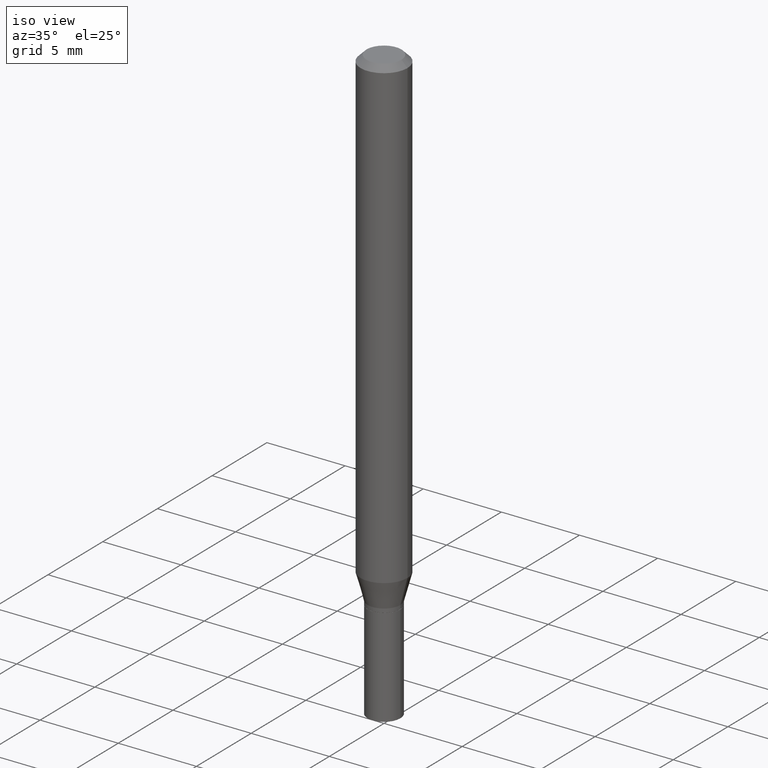
[diagram: clean part render]
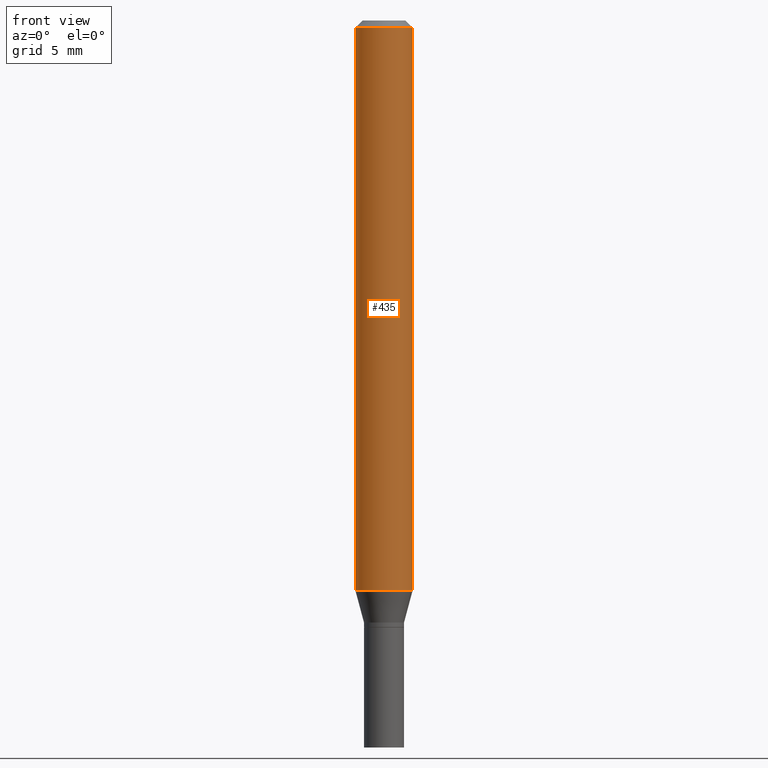
[diagram: tour spotlight — one face highlighted and labeled with its STEP entity id]
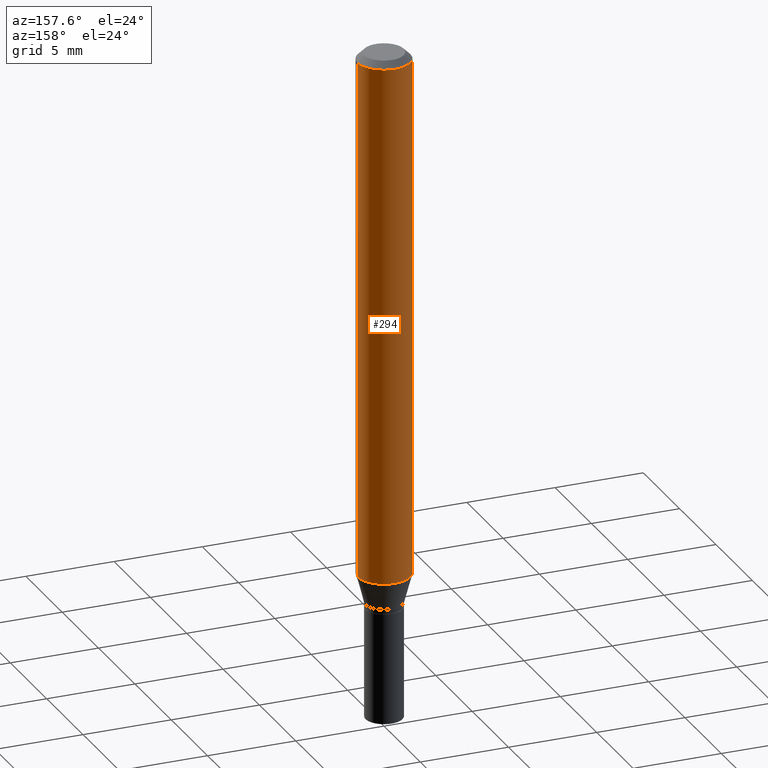
[diagram: tour spotlight — one face highlighted and labeled with its STEP entity id]
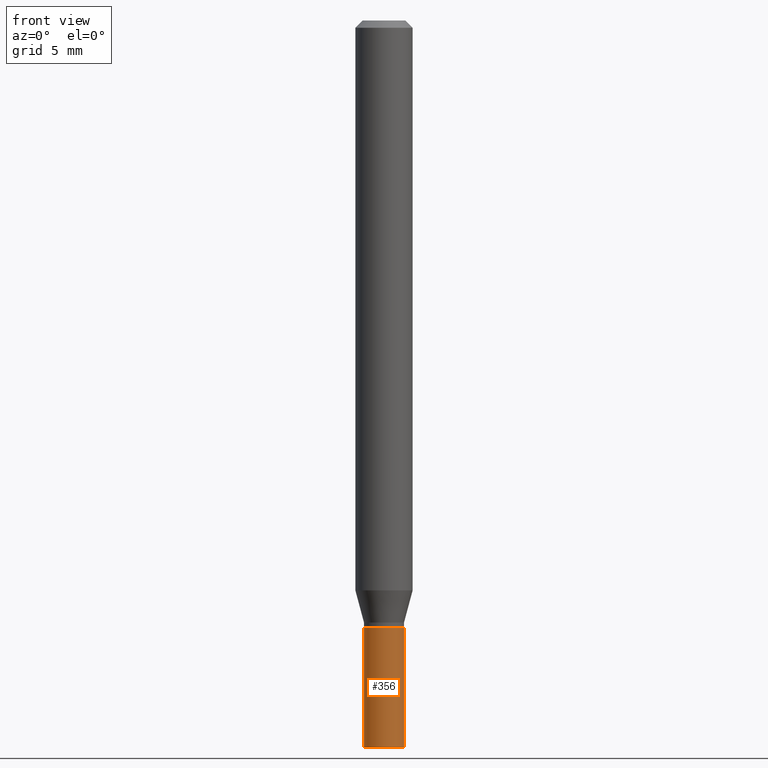
[diagram: tour spotlight — one face highlighted and labeled with its STEP entity id]
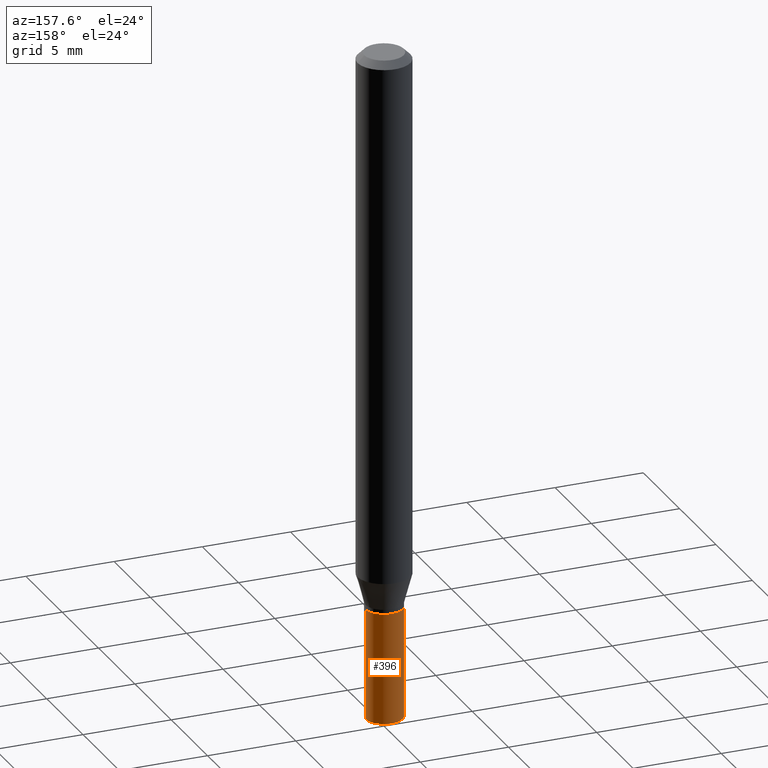
[diagram: tour spotlight — one face highlighted and labeled with its STEP entity id]
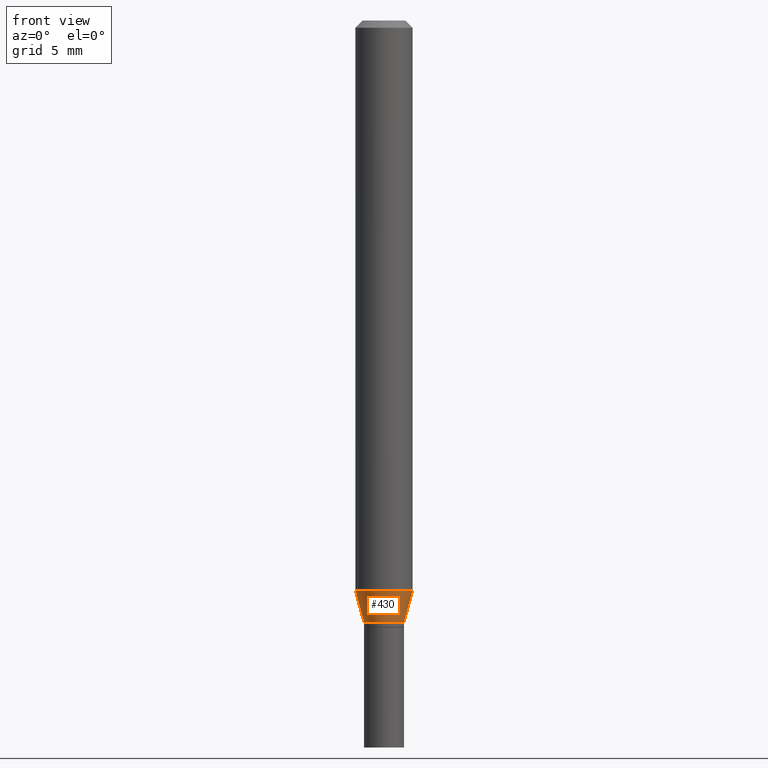
[diagram: tour spotlight — one face highlighted and labeled with its STEP entity id]
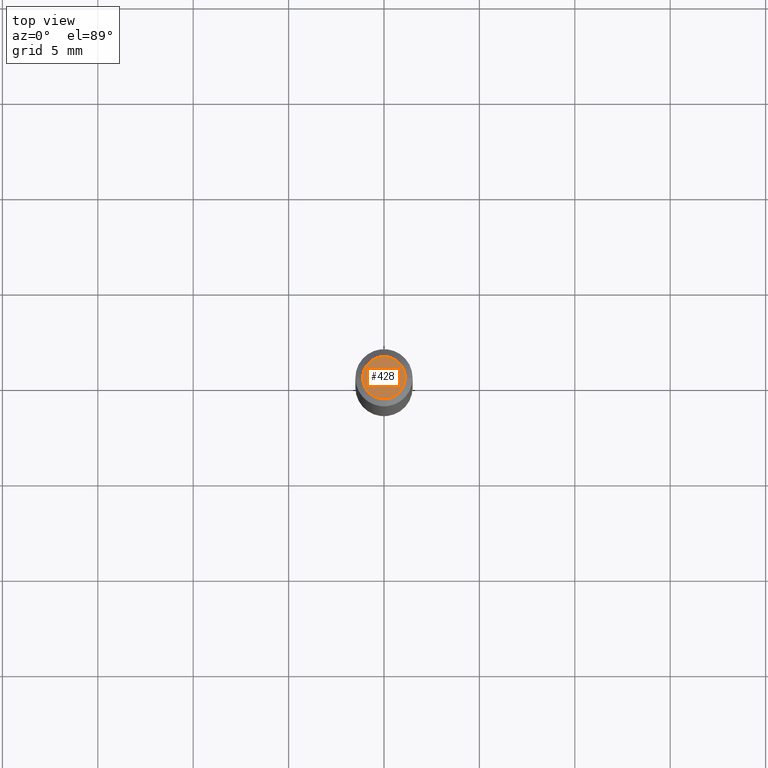
[diagram: tour spotlight — one face highlighted and labeled with its STEP entity id]
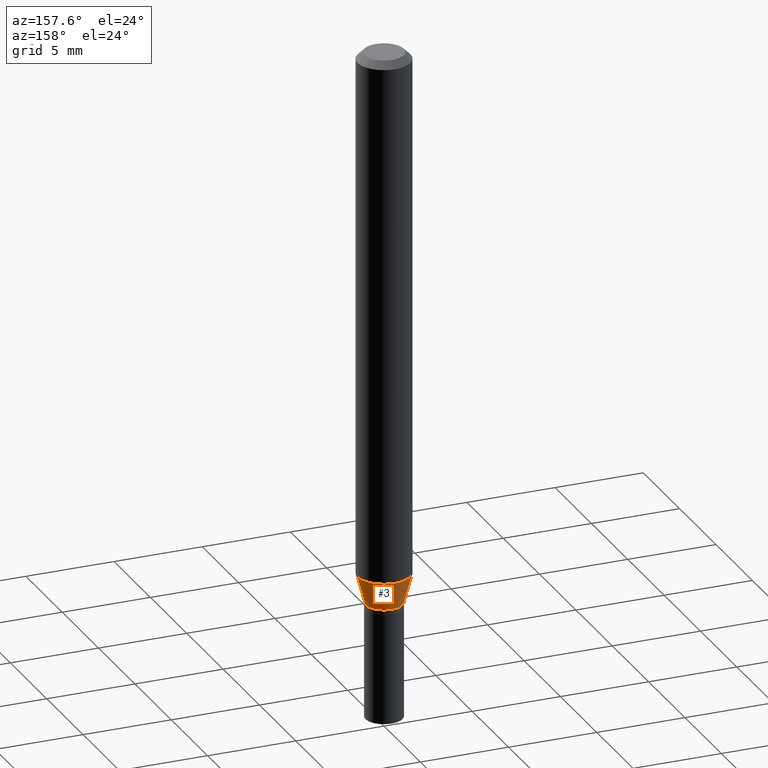
[diagram: tour spotlight — one face highlighted and labeled with its STEP entity id]
A machine part: a face-by-face anatomy tour. The part has 16 B-rep faces; the first image is the clean iso view, then the 7 largest visible faces are spotlighted one at a time (largest first), each with its STEP entity span.

Face 1 — front view, entity #435. In plain terms, the highlighted cylindrical surface (edge-blend (fillet) strip) has radius 1.4999 mm, axis along (-0, 0, 1).
Definition (entity closure, byte-faithful):
#2 = LINE ( 'NONE', #326, #242 ) ;
#18 = DIRECTION ( 'NONE',  ( -2.445468806185136597E-29, 3.491481338843145583E-15, 1.000000000000000000 ) ) ;
#22 = CARTESIAN_POINT ( 'NONE',  ( -0.05904999999999999832, -3.686206509597577830E-15, -1.175942700706030575 ) ) ;
#24 = CARTESIAN_POINT ( 'NONE',  ( 3.668203209277705088E-31, -5.237222008264718399E-17, -0.01499999999999999944 ) ) ;
#37 = CARTESIAN_POINT ( 'NONE',  ( -0.05904999999999999832, -1.659501622106942511E-15, -0.01499999999999999944 ) ) ;
#46 = EDGE_LOOP ( 'NONE', ( #416, #447, #117, #192 ) ) ;
#62 = VERTEX_POINT ( 'NONE', #227 ) ;
#97 = VERTEX_POINT ( 'NONE', #22 ) ;
#103 = AXIS2_PLACEMENT_3D ( 'NONE', #339, #18, #281 ) ;
#115 = EDGE_CURVE ( 'NONE', #97, #62, #452, .T. ) ;
#117 = ORIENTED_EDGE ( 'NONE', *, *, #270, .T. ) ;
#122 = FACE_OUTER_BOUND ( 'NONE', #46, .T. ) ;
#123 = AXIS2_PLACEMENT_3D ( 'NONE', #287, #254, #291 ) ;
#129 = DIRECTION ( 'NONE',  ( -2.445468806185136877E-29, 3.491481338843145188E-15, 1.000000000000000000 ) ) ;
#184 = VECTOR ( 'NONE', #129, 39.37007874015748143 ) ;
#191 = CYLINDRICAL_SURFACE ( 'NONE', #103, 0.05904999999999999832 ) ;
#192 = ORIENTED_EDGE ( 'NONE', *, *, #366, .F. ) ;
#200 = LINE ( 'NONE', #421, #184 ) ;
#227 = CARTESIAN_POINT ( 'NONE',  ( 0.05904999999999999832, -4.518125941181290665E-15, -1.175942700706030575 ) ) ;
#234 = DIRECTION ( 'NONE',  ( -2.445468806185136597E-29, 3.491481338843145583E-15, 1.000000000000000000 ) ) ;
#242 = VECTOR ( 'NONE', #400, 39.37007874015748143 ) ;
#254 = DIRECTION ( 'NONE',  ( -2.445468806185136597E-29, 3.491481338843145583E-15, 1.000000000000000000 ) ) ;
#263 = VERTEX_POINT ( 'NONE', #37 ) ;
#270 = EDGE_CURVE ( 'NONE', #62, #382, #2, .T. ) ;
#281 = DIRECTION ( 'NONE',  ( 1.000000000000000000, -6.982962677686266711E-15, 4.876176775795936353E-29 ) ) ;
#287 = CARTESIAN_POINT ( 'NONE',  ( 2.875731192437701941E-29, -4.105781995063916534E-15, -1.175942700706030575 ) ) ;
#291 = DIRECTION ( 'NONE',  ( 1.000000000000000000, -6.982962677686273021E-15, 0.000000000000000000 ) ) ;
#326 = CARTESIAN_POINT ( 'NONE',  ( 0.05904999999999999832, -4.123439461173740327E-16, 2.879382386107500220E-30 ) ) ;
#339 = CARTESIAN_POINT ( 'NONE',  ( 0.000000000000000000, 0.000000000000000000, 0.000000000000000000 ) ) ;
#347 = CARTESIAN_POINT ( 'NONE',  ( 0.05904999999999999832, -4.647161662000212105E-16, -0.01499999999999999944 ) ) ;
#366 = EDGE_CURVE ( 'NONE', #263, #382, #463, .T. ) ;
#382 = VERTEX_POINT ( 'NONE', #347 ) ;
#387 = AXIS2_PLACEMENT_3D ( 'NONE', #24, #234, #417 ) ;
#400 = DIRECTION ( 'NONE',  ( -2.445468806185136877E-29, 3.491481338843145188E-15, 1.000000000000000000 ) ) ;
#407 = EDGE_CURVE ( 'NONE', #97, #263, #200, .T. ) ;
#416 = ORIENTED_EDGE ( 'NONE', *, *, #407, .F. ) ;
#417 = DIRECTION ( 'NONE',  ( 1.000000000000000000, -6.982962677686266711E-15, 0.000000000000000000 ) ) ;
#421 = CARTESIAN_POINT ( 'NONE',  ( -0.05904999999999999832, 4.195754854663391478E-16, -2.904631170795521892E-30 ) ) ;
#435 = ADVANCED_FACE ( 'NONE', ( #122 ), #191, .T. ) ;
#447 = ORIENTED_EDGE ( 'NONE', *, *, #115, .T. ) ;
#452 = CIRCLE ( 'NONE', #123, 0.05904999999999999832 ) ;
#463 = CIRCLE ( 'NONE', #387, 0.05904999999999999832 ) ;

Face 2 — auxiliary view, entity #294. In plain terms, the highlighted cylindrical surface (edge-blend (fillet) strip) has radius 1.4999 mm, axis along (-0, 0, 1).
Definition (entity closure, byte-faithful):
#2 = LINE ( 'NONE', #326, #242 ) ;
#10 = CARTESIAN_POINT ( 'NONE',  ( 0.000000000000000000, 0.000000000000000000, 0.000000000000000000 ) ) ;
#22 = CARTESIAN_POINT ( 'NONE',  ( -0.05904999999999999832, -3.686206509597577830E-15, -1.175942700706030575 ) ) ;
#32 = CIRCLE ( 'NONE', #316, 0.05904999999999999832 ) ;
#37 = CARTESIAN_POINT ( 'NONE',  ( -0.05904999999999999832, -1.659501622106942511E-15, -0.01499999999999999944 ) ) ;
#41 = CIRCLE ( 'NONE', #147, 0.05904999999999999832 ) ;
#47 = DIRECTION ( 'NONE',  ( -2.445468806185136597E-29, 3.491481338843145583E-15, 1.000000000000000000 ) ) ;
#60 = ORIENTED_EDGE ( 'NONE', *, *, #459, .F. ) ;
#62 = VERTEX_POINT ( 'NONE', #227 ) ;
#78 = DIRECTION ( 'NONE',  ( -2.445468806185136597E-29, 3.491481338843145583E-15, 1.000000000000000000 ) ) ;
#95 = EDGE_LOOP ( 'NONE', ( #148, #377, #60, #226 ) ) ;
#97 = VERTEX_POINT ( 'NONE', #22 ) ;
#129 = DIRECTION ( 'NONE',  ( -2.445468806185136877E-29, 3.491481338843145188E-15, 1.000000000000000000 ) ) ;
#147 = AXIS2_PLACEMENT_3D ( 'NONE', #440, #78, #321 ) ;
#148 = ORIENTED_EDGE ( 'NONE', *, *, #279, .T. ) ;
#153 = CARTESIAN_POINT ( 'NONE',  ( 3.668203209277705088E-31, -5.237222008264718399E-17, -0.01499999999999999944 ) ) ;
#184 = VECTOR ( 'NONE', #129, 39.37007874015748143 ) ;
#200 = LINE ( 'NONE', #421, #184 ) ;
#221 = DIRECTION ( 'NONE',  ( -2.445468806185136597E-29, 3.491481338843145583E-15, 1.000000000000000000 ) ) ;
#226 = ORIENTED_EDGE ( 'NONE', *, *, #270, .F. ) ;
#227 = CARTESIAN_POINT ( 'NONE',  ( 0.05904999999999999832, -4.518125941181290665E-15, -1.175942700706030575 ) ) ;
#242 = VECTOR ( 'NONE', #400, 39.37007874015748143 ) ;
#263 = VERTEX_POINT ( 'NONE', #37 ) ;
#270 = EDGE_CURVE ( 'NONE', #62, #382, #2, .T. ) ;
#279 = EDGE_CURVE ( 'NONE', #62, #97, #41, .T. ) ;
#288 = FACE_OUTER_BOUND ( 'NONE', #95, .T. ) ;
#290 = DIRECTION ( 'NONE',  ( 1.000000000000000000, -6.982962677686266711E-15, 0.000000000000000000 ) ) ;
#294 = ADVANCED_FACE ( 'NONE', ( #288 ), #412, .T. ) ;
#316 = AXIS2_PLACEMENT_3D ( 'NONE', #153, #47, #290 ) ;
#321 = DIRECTION ( 'NONE',  ( 1.000000000000000000, -6.982962677686273021E-15, 0.000000000000000000 ) ) ;
#326 = CARTESIAN_POINT ( 'NONE',  ( 0.05904999999999999832, -4.123439461173740327E-16, 2.879382386107500220E-30 ) ) ;
#347 = CARTESIAN_POINT ( 'NONE',  ( 0.05904999999999999832, -4.647161662000212105E-16, -0.01499999999999999944 ) ) ;
#353 = AXIS2_PLACEMENT_3D ( 'NONE', #10, #221, #363 ) ;
#363 = DIRECTION ( 'NONE',  ( 1.000000000000000000, -6.982962677686266711E-15, 4.876176775795936353E-29 ) ) ;
#377 = ORIENTED_EDGE ( 'NONE', *, *, #407, .T. ) ;
#382 = VERTEX_POINT ( 'NONE', #347 ) ;
#400 = DIRECTION ( 'NONE',  ( -2.445468806185136877E-29, 3.491481338843145188E-15, 1.000000000000000000 ) ) ;
#407 = EDGE_CURVE ( 'NONE', #97, #263, #200, .T. ) ;
#412 = CYLINDRICAL_SURFACE ( 'NONE', #353, 0.05904999999999999832 ) ;
#421 = CARTESIAN_POINT ( 'NONE',  ( -0.05904999999999999832, 4.195754854663391478E-16, -2.904631170795521892E-30 ) ) ;
#440 = CARTESIAN_POINT ( 'NONE',  ( 2.875731192437701941E-29, -4.105781995063916534E-15, -1.175942700706030575 ) ) ;
#459 = EDGE_CURVE ( 'NONE', #382, #263, #32, .T. ) ;

Face 3 — front view, entity #356. In plain terms, the highlighted cylindrical surface (edge-blend (fillet) strip) has radius 1.0503 mm, axis along (-0, 0, 1).
Definition (entity closure, byte-faithful):
#6 = CARTESIAN_POINT ( 'NONE',  ( 0.04134999999999999787, -4.660080142953946220E-15, -1.252000000000000224 ) ) ;
#17 = ORIENTED_EDGE ( 'NONE', *, *, #201, .F. ) ;
#31 = DIRECTION ( 'NONE',  ( -2.445468806185136877E-29, 3.491481338843145188E-15, 1.000000000000000000 ) ) ;
#34 = LINE ( 'NONE', #181, #42 ) ;
#42 = VECTOR ( 'NONE', #178, 39.37007874015748143 ) ;
#64 = CARTESIAN_POINT ( 'NONE',  ( -0.04134999999999999787, -4.510468901011368103E-15, -1.252000000000000224 ) ) ;
#82 = ORIENTED_EDGE ( 'NONE', *, *, #169, .F. ) ;
#93 = DIRECTION ( 'NONE',  ( 1.000000000000000000, -6.982962677686267499E-15, 4.876176775795936353E-29 ) ) ;
#130 = ORIENTED_EDGE ( 'NONE', *, *, #405, .T. ) ;
#133 = VECTOR ( 'NONE', #31, 39.37007874015748143 ) ;
#136 = CARTESIAN_POINT ( 'NONE',  ( 3.061726945343791391E-29, -4.371334636231619274E-15, -1.252000000000000224 ) ) ;
#141 = CIRCLE ( 'NONE', #280, 0.04134999999999999787 ) ;
#165 = CARTESIAN_POINT ( 'NONE',  ( 3.668203209277704895E-29, -5.237222008264718177E-15, -1.500000000000000222 ) ) ;
#169 = EDGE_CURVE ( 'NONE', #190, #295, #141, .T. ) ;
#178 = DIRECTION ( 'NONE',  ( -2.445468806185136877E-29, 3.491481338843145188E-15, 1.000000000000000000 ) ) ;
#181 = CARTESIAN_POINT ( 'NONE',  ( 0.04134999999999999787, -2.887455067223271427E-16, 2.016299096791619635E-30 ) ) ;
#190 = VERTEX_POINT ( 'NONE', #64 ) ;
#194 = DIRECTION ( 'NONE',  ( -2.445468806185136597E-29, 3.491481338843145583E-15, 1.000000000000000000 ) ) ;
#198 = LINE ( 'NONE', #311, #133 ) ;
#201 = EDGE_CURVE ( 'NONE', #448, #190, #198, .T. ) ;
#213 = CARTESIAN_POINT ( 'NONE',  ( 0.04134999999999999787, -5.525967514987045911E-15, -1.500000000000000222 ) ) ;
#218 = ORIENTED_EDGE ( 'NONE', *, *, #439, .T. ) ;
#244 = EDGE_LOOP ( 'NONE', ( #17, #130, #218, #82 ) ) ;
#267 = DIRECTION ( 'NONE',  ( 1.000000000000000000, -6.982962677686273021E-15, 0.000000000000000000 ) ) ;
#272 = DIRECTION ( 'NONE',  ( -2.445468806185136597E-29, 3.491481338843145583E-15, 1.000000000000000000 ) ) ;
#273 = FACE_OUTER_BOUND ( 'NONE', #244, .T. ) ;
#280 = AXIS2_PLACEMENT_3D ( 'NONE', #136, #272, #354 ) ;
#286 = AXIS2_PLACEMENT_3D ( 'NONE', #301, #458, #93 ) ;
#295 = VERTEX_POINT ( 'NONE', #6 ) ;
#300 = VERTEX_POINT ( 'NONE', #213 ) ;
#301 = CARTESIAN_POINT ( 'NONE',  ( 0.000000000000000000, 0.000000000000000000, 0.000000000000000000 ) ) ;
#311 = CARTESIAN_POINT ( 'NONE',  ( -0.04134999999999999787, 2.938094212368014117E-16, -2.033979659820403452E-30 ) ) ;
#328 = CARTESIAN_POINT ( 'NONE',  ( -0.04134999999999999787, -4.510468901011368103E-15, -1.500000000000000222 ) ) ;
#343 = CIRCLE ( 'NONE', #403, 0.04134999999999999787 ) ;
#354 = DIRECTION ( 'NONE',  ( 1.000000000000000000, -6.982962677686273021E-15, 0.000000000000000000 ) ) ;
#356 = ADVANCED_FACE ( 'NONE', ( #273 ), #383, .T. ) ;
#383 = CYLINDRICAL_SURFACE ( 'NONE', #286, 0.04134999999999999787 ) ;
#403 = AXIS2_PLACEMENT_3D ( 'NONE', #165, #194, #267 ) ;
#405 = EDGE_CURVE ( 'NONE', #448, #300, #343, .T. ) ;
#439 = EDGE_CURVE ( 'NONE', #300, #295, #34, .T. ) ;
#448 = VERTEX_POINT ( 'NONE', #328 ) ;
#458 = DIRECTION ( 'NONE',  ( -2.445468806185136597E-29, 3.491481338843145583E-15, 1.000000000000000000 ) ) ;

Face 4 — auxiliary view, entity #396. In plain terms, the highlighted cylindrical surface (edge-blend (fillet) strip) has radius 1.0503 mm, axis along (-0, 0, 1).
Definition (entity closure, byte-faithful):
#6 = CARTESIAN_POINT ( 'NONE',  ( 0.04134999999999999787, -4.660080142953946220E-15, -1.252000000000000224 ) ) ;
#20 = CIRCLE ( 'NONE', #358, 0.04134999999999999787 ) ;
#23 = DIRECTION ( 'NONE',  ( 1.000000000000000000, -6.982962677686273021E-15, 0.000000000000000000 ) ) ;
#28 = CARTESIAN_POINT ( 'NONE',  ( 0.000000000000000000, 0.000000000000000000, 0.000000000000000000 ) ) ;
#31 = DIRECTION ( 'NONE',  ( -2.445468806185136877E-29, 3.491481338843145188E-15, 1.000000000000000000 ) ) ;
#33 = EDGE_CURVE ( 'NONE', #295, #190, #20, .T. ) ;
#34 = LINE ( 'NONE', #181, #42 ) ;
#42 = VECTOR ( 'NONE', #178, 39.37007874015748143 ) ;
#49 = DIRECTION ( 'NONE',  ( -2.445468806185136597E-29, 3.491481338843145583E-15, 1.000000000000000000 ) ) ;
#53 = DIRECTION ( 'NONE',  ( -2.445468806185136597E-29, 3.491481338843145583E-15, 1.000000000000000000 ) ) ;
#64 = CARTESIAN_POINT ( 'NONE',  ( -0.04134999999999999787, -4.510468901011368103E-15, -1.252000000000000224 ) ) ;
#66 = EDGE_CURVE ( 'NONE', #300, #448, #314, .T. ) ;
#73 = DIRECTION ( 'NONE',  ( -2.445468806185136597E-29, 3.491481338843145583E-15, 1.000000000000000000 ) ) ;
#86 = ORIENTED_EDGE ( 'NONE', *, *, #33, .F. ) ;
#90 = FACE_OUTER_BOUND ( 'NONE', #423, .T. ) ;
#108 = AXIS2_PLACEMENT_3D ( 'NONE', #379, #49, #454 ) ;
#133 = VECTOR ( 'NONE', #31, 39.37007874015748143 ) ;
#168 = DIRECTION ( 'NONE',  ( 1.000000000000000000, -6.982962677686267499E-15, 4.876176775795936353E-29 ) ) ;
#172 = AXIS2_PLACEMENT_3D ( 'NONE', #28, #53, #168 ) ;
#178 = DIRECTION ( 'NONE',  ( -2.445468806185136877E-29, 3.491481338843145188E-15, 1.000000000000000000 ) ) ;
#181 = CARTESIAN_POINT ( 'NONE',  ( 0.04134999999999999787, -2.887455067223271427E-16, 2.016299096791619635E-30 ) ) ;
#190 = VERTEX_POINT ( 'NONE', #64 ) ;
#198 = LINE ( 'NONE', #311, #133 ) ;
#201 = EDGE_CURVE ( 'NONE', #448, #190, #198, .T. ) ;
#213 = CARTESIAN_POINT ( 'NONE',  ( 0.04134999999999999787, -5.525967514987045911E-15, -1.500000000000000222 ) ) ;
#260 = ORIENTED_EDGE ( 'NONE', *, *, #439, .F. ) ;
#295 = VERTEX_POINT ( 'NONE', #6 ) ;
#300 = VERTEX_POINT ( 'NONE', #213 ) ;
#311 = CARTESIAN_POINT ( 'NONE',  ( -0.04134999999999999787, 2.938094212368014117E-16, -2.033979659820403452E-30 ) ) ;
#314 = CIRCLE ( 'NONE', #108, 0.04134999999999999787 ) ;
#328 = CARTESIAN_POINT ( 'NONE',  ( -0.04134999999999999787, -4.510468901011368103E-15, -1.500000000000000222 ) ) ;
#344 = CARTESIAN_POINT ( 'NONE',  ( 3.061726945343791391E-29, -4.371334636231619274E-15, -1.252000000000000224 ) ) ;
#358 = AXIS2_PLACEMENT_3D ( 'NONE', #344, #73, #23 ) ;
#379 = CARTESIAN_POINT ( 'NONE',  ( 3.668203209277704895E-29, -5.237222008264718177E-15, -1.500000000000000222 ) ) ;
#396 = ADVANCED_FACE ( 'NONE', ( #90 ), #427, .T. ) ;
#423 = EDGE_LOOP ( 'NONE', ( #443, #451, #86, #260 ) ) ;
#427 = CYLINDRICAL_SURFACE ( 'NONE', #172, 0.04134999999999999787 ) ;
#439 = EDGE_CURVE ( 'NONE', #300, #295, #34, .T. ) ;
#443 = ORIENTED_EDGE ( 'NONE', *, *, #66, .T. ) ;
#448 = VERTEX_POINT ( 'NONE', #328 ) ;
#451 = ORIENTED_EDGE ( 'NONE', *, *, #201, .T. ) ;
#454 = DIRECTION ( 'NONE',  ( 1.000000000000000000, -6.982962677686273021E-15, 0.000000000000000000 ) ) ;

Face 5 — front view, entity #430. In plain terms, the highlighted conical surface has half-angle 15 deg.
Definition (entity closure, byte-faithful):
#1 = LINE ( 'NONE', #282, #101 ) ;
#14 = FACE_OUTER_BOUND ( 'NONE', #375, .T. ) ;
#22 = CARTESIAN_POINT ( 'NONE',  ( -0.05904999999999999832, -3.686206509597577830E-15, -1.175942700706030575 ) ) ;
#43 = CARTESIAN_POINT ( 'NONE',  ( 0.04134999999999991460, -4.625165329565513782E-15, -1.241999999999999993 ) ) ;
#55 = ORIENTED_EDGE ( 'NONE', *, *, #171, .T. ) ;
#58 = CONICAL_SURFACE ( 'NONE', #397, 0.04134999999999991460, 0.2617993877991495189 ) ;
#62 = VERTEX_POINT ( 'NONE', #227 ) ;
#81 = VECTOR ( 'NONE', #283, 39.37007874015748854 ) ;
#96 = DIRECTION ( 'NONE',  ( -2.445468806185136597E-29, 3.491481338843145583E-15, 1.000000000000000000 ) ) ;
#97 = VERTEX_POINT ( 'NONE', #22 ) ;
#101 = VECTOR ( 'NONE', #142, 39.37007874015748854 ) ;
#110 = CIRCLE ( 'NONE', #176, 0.04134999999999991460 ) ;
#115 = EDGE_CURVE ( 'NONE', #97, #62, #452, .T. ) ;
#123 = AXIS2_PLACEMENT_3D ( 'NONE', #287, #254, #291 ) ;
#137 = LINE ( 'NONE', #278, #81 ) ;
#142 = DIRECTION ( 'NONE',  ( -0.2588190451025207950, 5.211531920934546309E-15, 0.9659258262890682012 ) ) ;
#171 = EDGE_CURVE ( 'NONE', #240, #444, #110, .T. ) ;
#176 = AXIS2_PLACEMENT_3D ( 'NONE', #249, #96, #391 ) ;
#206 = EDGE_CURVE ( 'NONE', #444, #62, #137, .T. ) ;
#211 = CARTESIAN_POINT ( 'NONE',  ( -0.04134999999999991460, -3.864408455601981627E-15, -1.241999999999999993 ) ) ;
#227 = CARTESIAN_POINT ( 'NONE',  ( 0.05904999999999999832, -4.518125941181290665E-15, -1.175942700706030575 ) ) ;
#240 = VERTEX_POINT ( 'NONE', #211 ) ;
#249 = CARTESIAN_POINT ( 'NONE',  ( 3.037272257281939846E-29, -4.336419822843186836E-15, -1.241999999999999993 ) ) ;
#254 = DIRECTION ( 'NONE',  ( -2.445468806185136597E-29, 3.491481338843145583E-15, 1.000000000000000000 ) ) ;
#278 = CARTESIAN_POINT ( 'NONE',  ( 0.04134999999999991460, -4.625165329565513782E-15, -1.241999999999999993 ) ) ;
#282 = CARTESIAN_POINT ( 'NONE',  ( -0.04134999999999991460, -4.042610401606386214E-15, -1.241999999999999993 ) ) ;
#283 = DIRECTION ( 'NONE',  ( 0.2588190451025207950, 1.565188264969625912E-15, 0.9659258262890682012 ) ) ;
#287 = CARTESIAN_POINT ( 'NONE',  ( 2.875731192437701941E-29, -4.105781995063916534E-15, -1.175942700706030575 ) ) ;
#291 = DIRECTION ( 'NONE',  ( 1.000000000000000000, -6.982962677686273021E-15, 0.000000000000000000 ) ) ;
#292 = ORIENTED_EDGE ( 'NONE', *, *, #340, .F. ) ;
#297 = DIRECTION ( 'NONE',  ( -2.445468806185136597E-29, 3.491481338843145583E-15, 1.000000000000000000 ) ) ;
#340 = EDGE_CURVE ( 'NONE', #240, #97, #1, .T. ) ;
#375 = EDGE_LOOP ( 'NONE', ( #292, #55, #385, #425 ) ) ;
#380 = CARTESIAN_POINT ( 'NONE',  ( 3.037272257281939846E-29, -4.336419822843186836E-15, -1.241999999999999993 ) ) ;
#385 = ORIENTED_EDGE ( 'NONE', *, *, #206, .T. ) ;
#391 = DIRECTION ( 'NONE',  ( 1.000000000000000000, -6.982962677686275388E-15, 0.000000000000000000 ) ) ;
#397 = AXIS2_PLACEMENT_3D ( 'NONE', #380, #297, #449 ) ;
#425 = ORIENTED_EDGE ( 'NONE', *, *, #115, .F. ) ;
#430 = ADVANCED_FACE ( 'NONE', ( #14 ), #58, .T. ) ;
#444 = VERTEX_POINT ( 'NONE', #43 ) ;
#449 = DIRECTION ( 'NONE',  ( 1.000000000000000000, -6.982962677686275388E-15, 0.000000000000000000 ) ) ;
#452 = CIRCLE ( 'NONE', #123, 0.05904999999999999832 ) ;

Face 6 — top view, entity #428. In plain terms, the highlighted planar face has unit normal (0, -0, -1).
Definition (entity closure, byte-faithful):
#26 = VERTEX_POINT ( 'NONE', #193 ) ;
#36 = AXIS2_PLACEMENT_3D ( 'NONE', #48, #355, #241 ) ;
#48 = CARTESIAN_POINT ( 'NONE',  ( 5.113335882009178277E-45, -7.300488465081862281E-31, -2.090942999999186255E-16 ) ) ;
#61 = PLANE ( 'NONE',  #464 ) ;
#127 = DIRECTION ( 'NONE',  ( 1.000000000000000000, -6.982962677686265922E-15, 4.888540261209747396E-29 ) ) ;
#132 = DIRECTION ( 'NONE',  ( 2.438088387897960049E-29, -3.491481338843145188E-15, -1.000000000000000000 ) ) ;
#134 = ORIENTED_EDGE ( 'NONE', *, *, #390, .T. ) ;
#135 = EDGE_CURVE ( 'NONE', #306, #26, #139, .T. ) ;
#139 = CIRCLE ( 'NONE', #36, 0.04404999999999999888 ) ;
#145 = CARTESIAN_POINT ( 'NONE',  ( 0.04404999999999999888, -3.798447818264464023E-16, -2.090942999999162343E-16 ) ) ;
#160 = AXIS2_PLACEMENT_3D ( 'NONE', #335, #424, #127 ) ;
#193 = CARTESIAN_POINT ( 'NONE',  ( -0.04404999999999999888, 3.337856159934030687E-16, -2.090942999999208688E-16 ) ) ;
#228 = DIRECTION ( 'NONE',  ( -1.000000000000000000, 6.982962677686265922E-15, -4.876176775795935793E-29 ) ) ;
#241 = DIRECTION ( 'NONE',  ( 1.000000000000000000, -6.982962677686265922E-15, 4.888540261209747396E-29 ) ) ;
#264 = FACE_OUTER_BOUND ( 'NONE', #419, .T. ) ;
#305 = ORIENTED_EDGE ( 'NONE', *, *, #135, .T. ) ;
#306 = VERTEX_POINT ( 'NONE', #145 ) ;
#329 = CIRCLE ( 'NONE', #160, 0.04404999999999999888 ) ;
#335 = CARTESIAN_POINT ( 'NONE',  ( 5.113335882009178277E-45, -7.300488465081862281E-31, -2.090942999999186255E-16 ) ) ;
#355 = DIRECTION ( 'NONE',  ( -2.445468806185136597E-29, 3.491481338843145583E-15, 1.000000000000000000 ) ) ;
#390 = EDGE_CURVE ( 'NONE', #26, #306, #329, .T. ) ;
#419 = EDGE_LOOP ( 'NONE', ( #134, #305 ) ) ;
#424 = DIRECTION ( 'NONE',  ( -2.445468806185136597E-29, 3.491481338843145583E-15, 1.000000000000000000 ) ) ;
#428 = ADVANCED_FACE ( 'NONE', ( #264 ), #61, .F. ) ;
#461 = CARTESIAN_POINT ( 'NONE',  ( 3.075995059520799729E-16, 0.04404999999999999888, -2.583469029759998662E-16 ) ) ;
#464 = AXIS2_PLACEMENT_3D ( 'NONE', #461, #132, #228 ) ;

Face 7 — auxiliary view, entity #3. In plain terms, the highlighted conical surface has half-angle 15 deg.
Definition (entity closure, byte-faithful):
#1 = LINE ( 'NONE', #282, #101 ) ;
#3 = ADVANCED_FACE ( 'NONE', ( #92 ), #342, .T. ) ;
#22 = CARTESIAN_POINT ( 'NONE',  ( -0.05904999999999999832, -3.686206509597577830E-15, -1.175942700706030575 ) ) ;
#27 = DIRECTION ( 'NONE',  ( -2.445468806185136597E-29, 3.491481338843145583E-15, 1.000000000000000000 ) ) ;
#41 = CIRCLE ( 'NONE', #147, 0.05904999999999999832 ) ;
#43 = CARTESIAN_POINT ( 'NONE',  ( 0.04134999999999991460, -4.625165329565513782E-15, -1.241999999999999993 ) ) ;
#62 = VERTEX_POINT ( 'NONE', #227 ) ;
#78 = DIRECTION ( 'NONE',  ( -2.445468806185136597E-29, 3.491481338843145583E-15, 1.000000000000000000 ) ) ;
#81 = VECTOR ( 'NONE', #283, 39.37007874015748854 ) ;
#92 = FACE_OUTER_BOUND ( 'NONE', #214, .T. ) ;
#97 = VERTEX_POINT ( 'NONE', #22 ) ;
#101 = VECTOR ( 'NONE', #142, 39.37007874015748854 ) ;
#137 = LINE ( 'NONE', #278, #81 ) ;
#138 = AXIS2_PLACEMENT_3D ( 'NONE', #411, #27, #187 ) ;
#142 = DIRECTION ( 'NONE',  ( -0.2588190451025207950, 5.211531920934546309E-15, 0.9659258262890682012 ) ) ;
#147 = AXIS2_PLACEMENT_3D ( 'NONE', #440, #78, #321 ) ;
#149 = ORIENTED_EDGE ( 'NONE', *, *, #340, .T. ) ;
#187 = DIRECTION ( 'NONE',  ( 1.000000000000000000, -6.982962677686275388E-15, 0.000000000000000000 ) ) ;
#206 = EDGE_CURVE ( 'NONE', #444, #62, #137, .T. ) ;
#211 = CARTESIAN_POINT ( 'NONE',  ( -0.04134999999999991460, -3.864408455601981627E-15, -1.241999999999999993 ) ) ;
#214 = EDGE_LOOP ( 'NONE', ( #230, #149, #410, #348 ) ) ;
#227 = CARTESIAN_POINT ( 'NONE',  ( 0.05904999999999999832, -4.518125941181290665E-15, -1.175942700706030575 ) ) ;
#230 = ORIENTED_EDGE ( 'NONE', *, *, #237, .T. ) ;
#237 = EDGE_CURVE ( 'NONE', #444, #240, #426, .T. ) ;
#240 = VERTEX_POINT ( 'NONE', #211 ) ;
#252 = DIRECTION ( 'NONE',  ( -2.445468806185136597E-29, 3.491481338843145583E-15, 1.000000000000000000 ) ) ;
#278 = CARTESIAN_POINT ( 'NONE',  ( 0.04134999999999991460, -4.625165329565513782E-15, -1.241999999999999993 ) ) ;
#279 = EDGE_CURVE ( 'NONE', #62, #97, #41, .T. ) ;
#282 = CARTESIAN_POINT ( 'NONE',  ( -0.04134999999999991460, -4.042610401606386214E-15, -1.241999999999999993 ) ) ;
#283 = DIRECTION ( 'NONE',  ( 0.2588190451025207950, 1.565188264969625912E-15, 0.9659258262890682012 ) ) ;
#321 = DIRECTION ( 'NONE',  ( 1.000000000000000000, -6.982962677686273021E-15, 0.000000000000000000 ) ) ;
#340 = EDGE_CURVE ( 'NONE', #240, #97, #1, .T. ) ;
#342 = CONICAL_SURFACE ( 'NONE', #138, 0.04134999999999991460, 0.2617993877991495189 ) ;
#348 = ORIENTED_EDGE ( 'NONE', *, *, #206, .F. ) ;
#367 = CARTESIAN_POINT ( 'NONE',  ( 3.037272257281939846E-29, -4.336419822843186836E-15, -1.241999999999999993 ) ) ;
#399 = DIRECTION ( 'NONE',  ( 1.000000000000000000, -6.982962677686275388E-15, 0.000000000000000000 ) ) ;
#410 = ORIENTED_EDGE ( 'NONE', *, *, #279, .F. ) ;
#411 = CARTESIAN_POINT ( 'NONE',  ( 3.037272257281939846E-29, -4.336419822843186836E-15, -1.241999999999999993 ) ) ;
#414 = AXIS2_PLACEMENT_3D ( 'NONE', #367, #252, #399 ) ;
#426 = CIRCLE ( 'NONE', #414, 0.04134999999999991460 ) ;
#440 = CARTESIAN_POINT ( 'NONE',  ( 2.875731192437701941E-29, -4.105781995063916534E-15, -1.175942700706030575 ) ) ;
#444 = VERTEX_POINT ( 'NONE', #43 ) ;